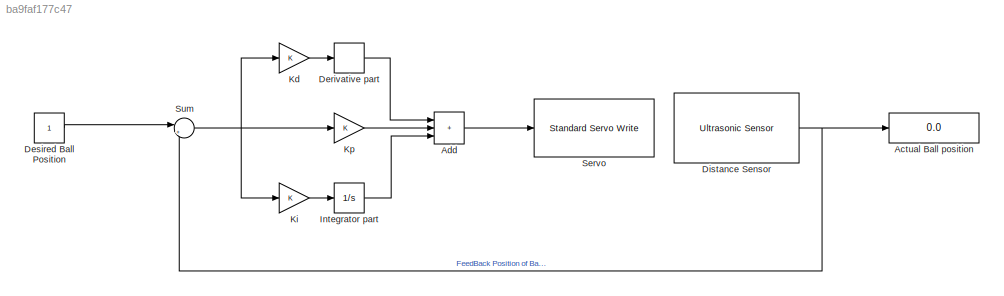
MODEL slx_ba9faf177c47
KIND model
CONFIG AbsTol = auto
CONFIG EnableMultiTasking = on
CONFIG FixedStep = auto
CONFIG MaxStep = auto
CONFIG MinStep = auto
CONFIG RelTol = 1e-3
CONFIG SampleTimeConstraint = Unconstrained
CONFIG SolverName = FixedStepAuto
CONFIG StartTime = 0.0
CONFIG StopTime = 10.0
BLOCK [Display] Actual Ball position
  Decimation = 1
  Ports = [1]
BLOCK [Sum] Add
  IconShape = rectangular
  Inputs = +++
  Ports = [3, 1]
BLOCK [Derivative] Derivative part
BLOCK [Constant] Desired Ball Position
BLOCK [Reference] Distance Sensor  REF=arduinosensorlib/Ultrasonic Sensor
  Ports = [0, 1]
  SourceBlock = arduinosensorlib/Ultrasonic Sensor
  SourceProductBaseCode = ARDUINO
  SourceType = Arduino Ultrasonic Sensor
BLOCK [Integrator] Integrator part
  Ports = [1, 1]
BLOCK [Gain] Kd
BLOCK [Gain] Ki
BLOCK [Gain] Kp
BLOCK [Reference] Servo  REF=arduinolib/Standard Servo Write
  Ports = [1]
  SourceBlock = arduinolib/Standard Servo Write
  SourceProductBaseCode = ARDUINO
  SourceType = Arduino Standard Servo Write
BLOCK [Sum] Sum
  Inputs = |+-
  Ports = [2, 1]
LINE Add:1 -> Servo:1
LINE Derivative part:1 -> Add:1
LINE Desired Ball Position:1 -> Sum:1
NET Distance Sensor:1 -> Actual Ball position:1, Sum:2
LINE Integrator part:1 -> Add:3
LINE Kd:1 -> Derivative part:1
LINE Ki:1 -> Integrator part:1
LINE Kp:1 -> Add:2
NET Sum:1 -> Kd:1, Ki:1, Kp:1
note: NET lines group one-source signal fan-out (src -> all destinations, sorted); 1:1 wires keep LINE
